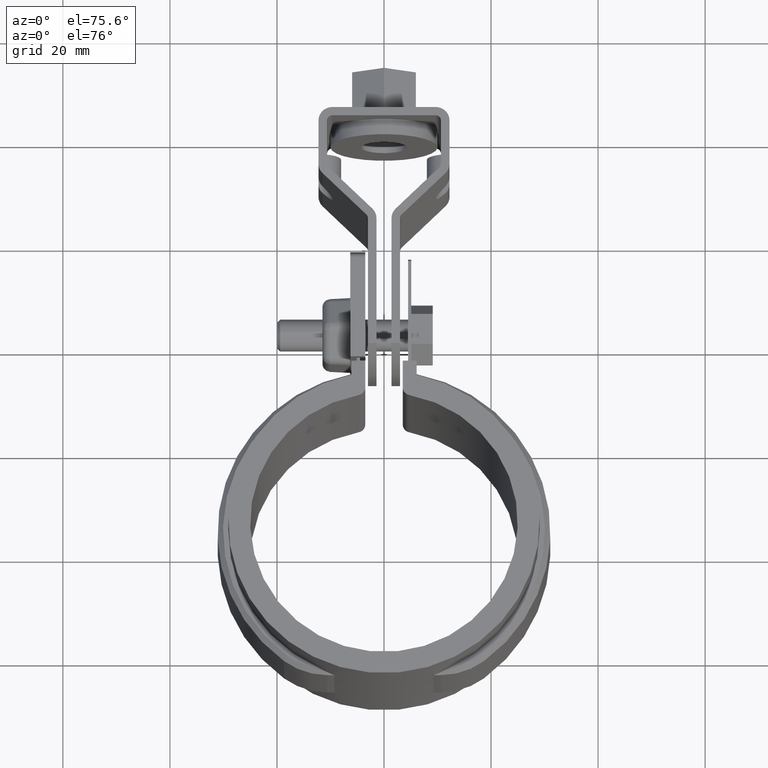
[diagram: clean part render]
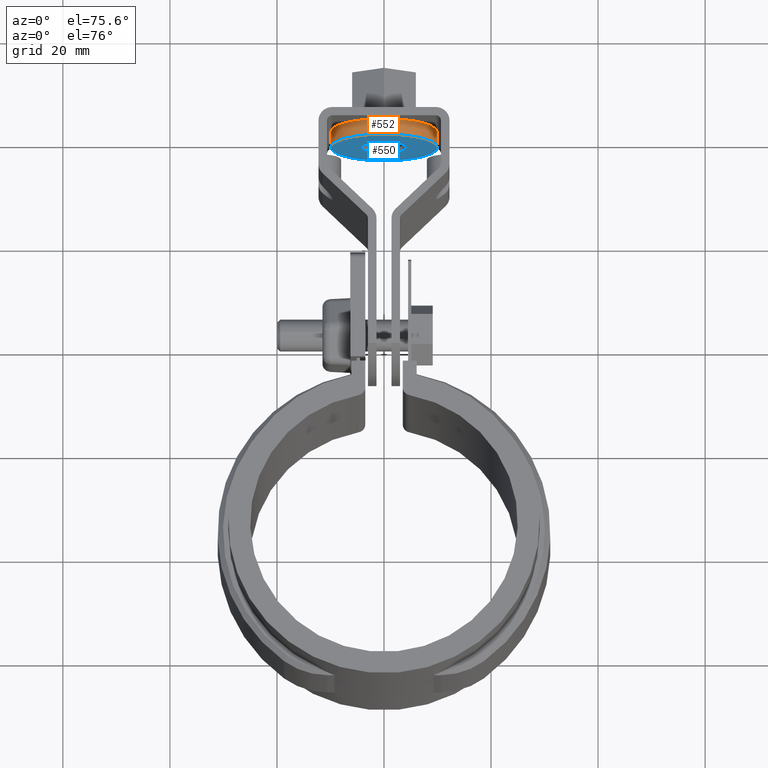
[diagram: same view with the hole feature highlighted: cylindrical wall and planar end face, labeled with their STEP entity ids]
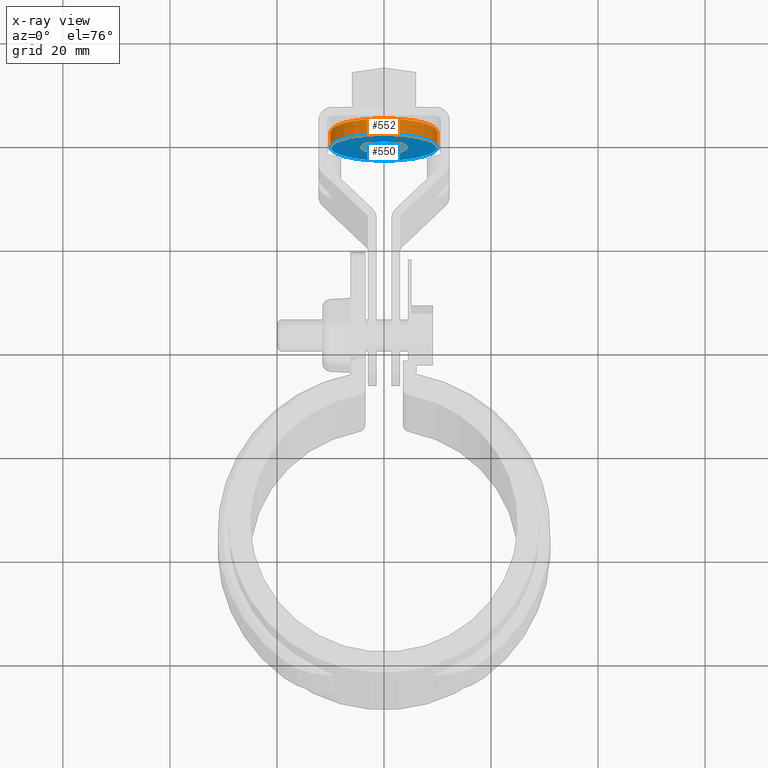
[diagram: x-ray of the same camera — body ghosted, the hole faces saturated]
A machine part, auxiliary view. The highlighted faces form one hole feature of diameter 20 mm: the cylindrical wall (entity #552, orange) and its adjacent planar end face (entity #550, blue) — they share a circular edge in the B-rep.
The next image is the same camera in x-ray (body ghosted, the hole faces saturated) — the bore reads through the body.
Wall:
#552 = ADVANCED_FACE( '', ( #1110, #1111 ), #1112, .T. );
#1110 = FACE_OUTER_BOUND( '', #2482, .T. );
#1111 = FACE_OUTER_BOUND( '', #2483, .T. );
#1112 = CYLINDRICAL_SURFACE( '', #2484, 10.0000000000000 );
#2482 = EDGE_LOOP( '', ( #5666 ) );
#2483 = EDGE_LOOP( '', ( #5667 ) );
#2484 = AXIS2_PLACEMENT_3D( '', #5668, #5669, #5670 );
#5666 = ORIENTED_EDGE( '', *, *, #7523, .T. );
#5667 = ORIENTED_EDGE( '', *, *, #7512, .F. );
#5668 = CARTESIAN_POINT( '', ( -6.62111748797458E-010, 75.8998007485224, -12.5000000691590 ) );
#5669 = DIRECTION( '', ( 3.46787463341350E-012, -1.00000000000000, 5.08856068393042E-010 ) );
#5670 = DIRECTION( '', ( 1.00000000000000, 3.46787463237660E-012, -2.03772028769699E-012 ) );
#7512 = EDGE_CURVE( '', #8846, #8846, #8847, .T. );
#7523 = EDGE_CURVE( '', #8865, #8865, #8866, .T. );
#8846 = VERTEX_POINT( '', #12580 );
#8847 = CIRCLE( '', #12581, 10.0000000000000 );
#8865 = VERTEX_POINT( '', #12608 );
#8866 = CIRCLE( '', #12609, 10.0000000000000 );
#12580 = CARTESIAN_POINT( '', ( 9.99999999932748, 78.8998007485571, -12.5000000707059 ) );
#12581 = AXIS2_PLACEMENT_3D( '', #14371, #14372, #14373 );
#12608 = CARTESIAN_POINT( '', ( 9.99999999933789, 75.8998007485571, -12.5000000691794 ) );
#12609 = AXIS2_PLACEMENT_3D( '', #14386, #14387, #14388 );
#14371 = CARTESIAN_POINT( '', ( -6.72515372697699E-010, 78.8998007485224, -12.5000000706856 ) );
#14372 = DIRECTION( '', ( -3.46787463341350E-012, 1.00000000000000, -5.08856068393042E-010 ) );
#14373 = DIRECTION( '', ( 1.00000000000000, 3.46787463237660E-012, -2.03772028769699E-012 ) );
#14386 = CARTESIAN_POINT( '', ( -6.62111748797458E-010, 75.8998007485224, -12.5000000691590 ) );
#14387 = DIRECTION( '', ( -3.46787463341350E-012, 1.00000000000000, -5.08856068393042E-010 ) );
#14388 = DIRECTION( '', ( 1.00000000000000, 3.46787463237660E-012, -2.03772028769699E-012 ) );
End face:
#550 = ADVANCED_FACE( '', ( #1104, #1105 ), #1106, .F. );
#1104 = FACE_BOUND( '', #2476, .T. );
#1105 = FACE_OUTER_BOUND( '', #2477, .T. );
#1106 = PLANE( '', #2478 );
#2476 = EDGE_LOOP( '', ( #5656 ) );
#2477 = EDGE_LOOP( '', ( #5657 ) );
#2478 = AXIS2_PLACEMENT_3D( '', #5658, #5659, #5660 );
#5656 = ORIENTED_EDGE( '', *, *, #7522, .T. );
#5657 = ORIENTED_EDGE( '', *, *, #7523, .F. );
#5658 = CARTESIAN_POINT( '', ( -6.62111748797458E-010, 75.8998007485224, -12.5000000691590 ) );
#5659 = DIRECTION( '', ( -3.46787463341350E-012, 1.00000000000000, -5.08856068393042E-010 ) );
#5660 = DIRECTION( '', ( 1.00000000000000, 3.46787463237660E-012, -2.03772028769699E-012 ) );
#7522 = EDGE_CURVE( '', #8863, #8863, #8864, .T. );
#7523 = EDGE_CURVE( '', #8865, #8865, #8866, .T. );
#8863 = VERTEX_POINT( '', #12606 );
#8864 = CIRCLE( '', #12607, 4.25000000000000 );
#8865 = VERTEX_POINT( '', #12608 );
#8866 = CIRCLE( '', #12609, 10.0000000000000 );
#12606 = CARTESIAN_POINT( '', ( 4.24999999933789, 75.8998007485372, -12.5000000691677 ) );
#12607 = AXIS2_PLACEMENT_3D( '', #14383, #14384, #14385 );
#12608 = CARTESIAN_POINT( '', ( 9.99999999933789, 75.8998007485571, -12.5000000691794 ) );
#12609 = AXIS2_PLACEMENT_3D( '', #14386, #14387, #14388 );
#14383 = CARTESIAN_POINT( '', ( -6.62113917201803E-010, 75.8998007485224, -12.5000000691590 ) );
#14384 = DIRECTION( '', ( -3.46787463341350E-012, 1.00000000000000, -5.08856068393042E-010 ) );
#14385 = DIRECTION( '', ( 1.00000000000000, 3.46787463237660E-012, -2.03772028769699E-012 ) );
#14386 = CARTESIAN_POINT( '', ( -6.62111748797458E-010, 75.8998007485224, -12.5000000691590 ) );
#14387 = DIRECTION( '', ( -3.46787463341350E-012, 1.00000000000000, -5.08856068393042E-010 ) );
#14388 = DIRECTION( '', ( 1.00000000000000, 3.46787463237660E-012, -2.03772028769699E-012 ) );